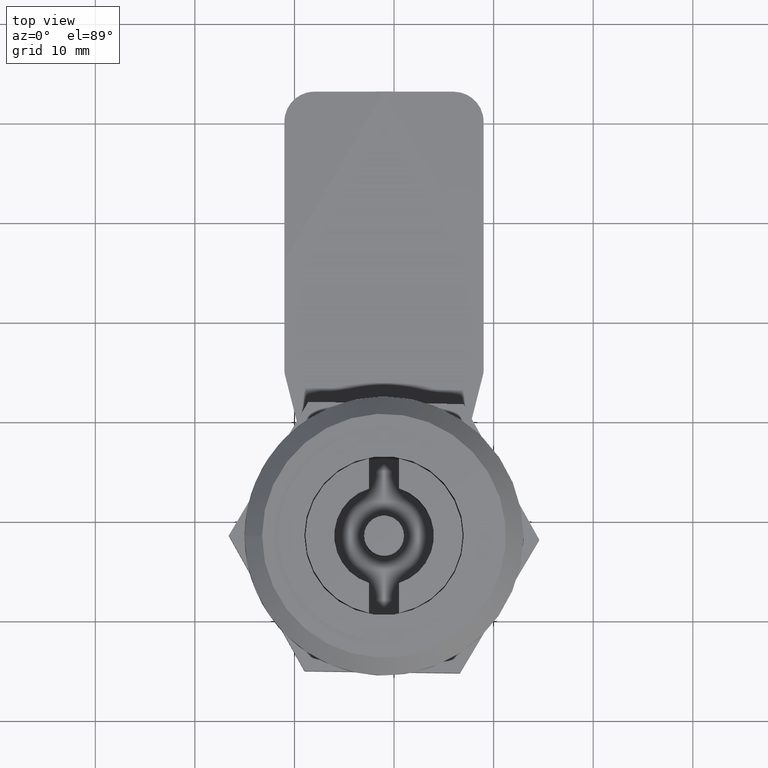
[diagram: clean part render]
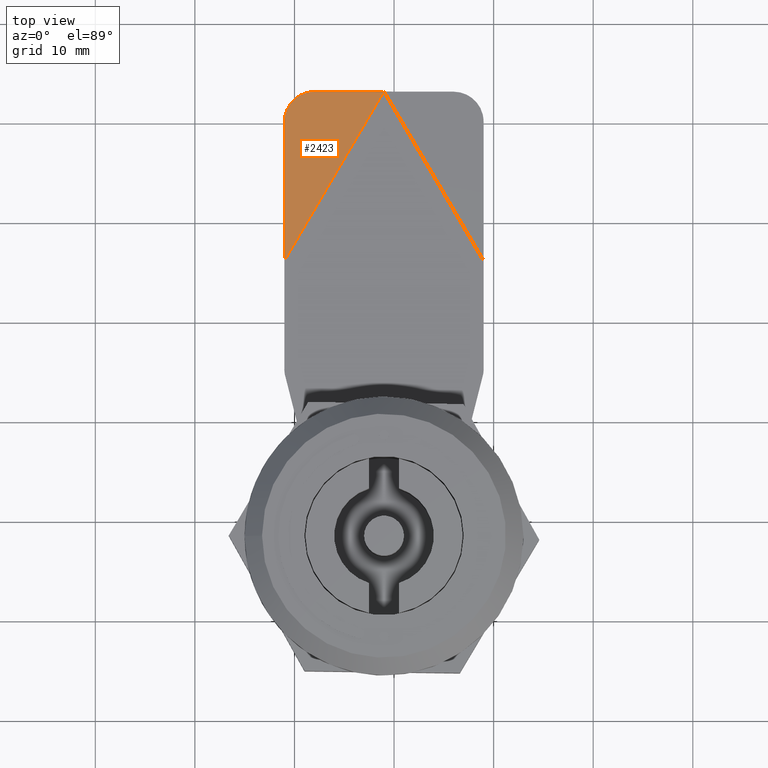
[diagram: same view with one face highlighted and labeled with its STEP entity id]
A machine part, top view. The second image highlights one B-rep face of the part: STEP entity #2423.
In plain terms, the highlighted face is a freeform B-spline surface patch.
Its self-contained STEP definition (entity closure, byte-faithful):
#49=B_SPLINE_SURFACE_WITH_KNOTS('',3,3,((#3847,#3848,#3849,#3850),(#3851,
#3852,#3853,#3854),(#3855,#3856,#3857,#3858),(#3859,#3860,#3861,#3862)),
 .UNSPECIFIED.,.F.,.F.,.F.,(4,4),(4,4),(0.,1.),(0.,1.),.UNSPECIFIED.);
#64=B_SPLINE_CURVE_WITH_KNOTS('',3,(#3725,#3726,#3727,#3728,#3729,#3730,
#3731,#3732,#3733,#3734,#3735,#3736),.UNSPECIFIED.,.F.,.F.,(4,2,2,2,2,4),
(-0.473316067500433,-0.433149932705796,-0.353013459816335,-0.238195136191895,
-0.119604551564278,0.),.UNSPECIFIED.);
#68=B_SPLINE_CURVE_WITH_KNOTS('',3,(#3865,#3866,#3867,#3868,#3869,#3870,
#3871,#3872,#3873,#3874,#3875,#3876,#3877,#3878,#3879,#3880),
 .UNSPECIFIED.,.F.,.F.,(4,2,2,2,2,2,2,4),(0.,0.986024099124519,1.16407622784133,
1.17733100034287,1.1854887646427,1.19079446954028,1.19151730566485,1.1919066636568),
 .UNSPECIFIED.);
#199=LINE('',#3763,#416);
#208=LINE('',#3864,#425);
#416=VECTOR('',#3023,7.02988799697406);
#425=VECTOR('',#3034,14.0242005366453);
#664=FACE_OUTER_BOUND('',#833,.T.);
#833=EDGE_LOOP('',(#1830,#1831,#1832,#1833));
#1124=VERTEX_POINT('',#3722);
#1125=VERTEX_POINT('',#3724);
#1129=VERTEX_POINT('',#3762);
#1138=VERTEX_POINT('',#3863);
#1379=EDGE_CURVE('',#1124,#1125,#64,.T.);
#1385=EDGE_CURVE('',#1129,#1125,#199,.T.);
#1397=EDGE_CURVE('',#1138,#1124,#208,.T.);
#1398=EDGE_CURVE('',#1129,#1138,#68,.T.);
#1830=ORIENTED_EDGE('',*,*,#1379,.F.);
#1831=ORIENTED_EDGE('',*,*,#1397,.F.);
#1832=ORIENTED_EDGE('',*,*,#1398,.F.);
#1833=ORIENTED_EDGE('',*,*,#1385,.T.);
#2423=ADVANCED_FACE('',(#664),#49,.F.);
#3023=DIRECTION('',(-0.995037190209989,0.,-0.099503719020999));
#3034=DIRECTION('',(5.2155632658453E-16,0.998274373174996,-0.0587220219514704));
#3722=CARTESIAN_POINT('',(-9.99999999999999,42.,2.17647058823529));
#3724=CARTESIAN_POINT('',(-7.,45.,2.3));
#3725=CARTESIAN_POINT('Ctrl Pts',(-10.,42.,2.17647058823529));
#3726=CARTESIAN_POINT('Ctrl Pts',(-10.,42.1334816995628,2.16861872355513));
#3727=CARTESIAN_POINT('Ctrl Pts',(-9.99109135067562,42.2669380916662,2.16165902260099));
#3728=CARTESIAN_POINT('Ctrl Pts',(-9.93775666694942,42.6639059716503,2.14364056308786));
#3729=CARTESIAN_POINT('Ctrl Pts',(-9.86709612318126,42.9225343001698,2.135492217401));
#3730=CARTESIAN_POINT('Ctrl Pts',(-9.61406157957475,43.5208786286987,2.12559693879576));
#3731=CARTESIAN_POINT('Ctrl Pts',(-9.39901360406487,43.8414774649049,2.12824216855423));
#3732=CARTESIAN_POINT('Ctrl Pts',(-8.85134837573882,44.3934464969076,2.15054005556249));
#3733=CARTESIAN_POINT('Ctrl Pts',(-8.52071120904346,44.6158966262629,2.17051945362323));
#3734=CARTESIAN_POINT('Ctrl Pts',(-7.78998524064647,44.9213132563037,2.22562875856897));
#3735=CARTESIAN_POINT('Ctrl Pts',(-7.39670325641615,45.,2.26032967435838));
#3736=CARTESIAN_POINT('Ctrl Pts',(-7.,45.,2.3));
#3762=CARTESIAN_POINT('',(-0.00500000000000056,45.,2.9995));
#3763=CARTESIAN_POINT('',(-9.99999999999999,45.,2.));
#3847=CARTESIAN_POINT('Ctrl Pts',(-9.99,28.,3.));
#3848=CARTESIAN_POINT('Ctrl Pts',(-6.66,33.6666666666667,3.));
#3849=CARTESIAN_POINT('Ctrl Pts',(-3.33,39.3333333333333,3.));
#3850=CARTESIAN_POINT('Ctrl Pts',(0.,45.,3.));
#3851=CARTESIAN_POINT('Ctrl Pts',(-9.99333333333333,28.,3.));
#3852=CARTESIAN_POINT('Ctrl Pts',(-7.77333333333333,33.6666666666667,2.88888888888889));
#3853=CARTESIAN_POINT('Ctrl Pts',(-5.55333333333333,39.3333333333333,2.77777777777778));
#3854=CARTESIAN_POINT('Ctrl Pts',(-3.33333333333333,45.,2.66666666666667));
#3855=CARTESIAN_POINT('Ctrl Pts',(-9.99666666666666,28.,3.));
#3856=CARTESIAN_POINT('Ctrl Pts',(-8.88666666666666,33.6666666666667,2.77777777777778));
#3857=CARTESIAN_POINT('Ctrl Pts',(-7.77666666666666,39.3333333333333,2.55555555555556));
#3858=CARTESIAN_POINT('Ctrl Pts',(-6.66666666666666,45.,2.33333333333333));
#3859=CARTESIAN_POINT('Ctrl Pts',(-10.,28.,3.));
#3860=CARTESIAN_POINT('Ctrl Pts',(-9.99999999999999,33.6666666666667,2.66666666666667));
#3861=CARTESIAN_POINT('Ctrl Pts',(-9.99999999999999,39.3333333333333,2.33333333333333));
#3862=CARTESIAN_POINT('Ctrl Pts',(-9.99999999999999,45.,2.));
#3863=CARTESIAN_POINT('',(-10.,28.,3.));
#3864=CARTESIAN_POINT('',(-10.,28.,3.));
#3865=CARTESIAN_POINT('Ctrl Pts',(-0.00499999999999973,45.,2.9995));
#3866=CARTESIAN_POINT('Ctrl Pts',(-1.67082773137014,42.1666761947682,2.99941675027996));
#3867=CARTESIAN_POINT('Ctrl Pts',(-3.33665546274029,39.3333523895363,2.99933350089353));
#3868=CARTESIAN_POINT('Ctrl Pts',(-5.30329143390571,35.9883987617412,2.99923580728904));
#3869=CARTESIAN_POINT('Ctrl Pts',(-8.77291113313048,30.0870946209887,2.99904988869808));
#3870=CARTESIAN_POINT('Ctrl Pts',(-9.5698209988301,28.7316701370574,2.99904251976407));
#3871=CARTESIAN_POINT('Ctrl Pts',(-9.63694391320852,28.6175040995952,2.99904265283869));
#3872=CARTESIAN_POINT('Ctrl Pts',(-9.72949715796393,28.4600848738982,2.99904731906755));
#3873=CARTESIAN_POINT('Ctrl Pts',(-9.77242744247494,28.3870668812317,2.99905067052853));
#3874=CARTESIAN_POINT('Ctrl Pts',(-9.83283712658877,28.2843190443197,2.99906263182791));
#3875=CARTESIAN_POINT('Ctrl Pts',(-9.88382305617668,28.1975996043018,2.99907482591635));
#3876=CARTESIAN_POINT('Ctrl Pts',(-9.9197812988118,28.1364400120259,2.99911334160245));
#3877=CARTESIAN_POINT('Ctrl Pts',(-9.96315936741189,28.0626604056026,2.99914506490744));
#3878=CARTESIAN_POINT('Ctrl Pts',(-9.98928957471971,28.0182168313922,2.99943734671386));
#3879=CARTESIAN_POINT('Ctrl Pts',(-9.99599700139036,28.0068085018873,2.99959949988898));
#3880=CARTESIAN_POINT('Ctrl Pts',(-10.,28.,3.));